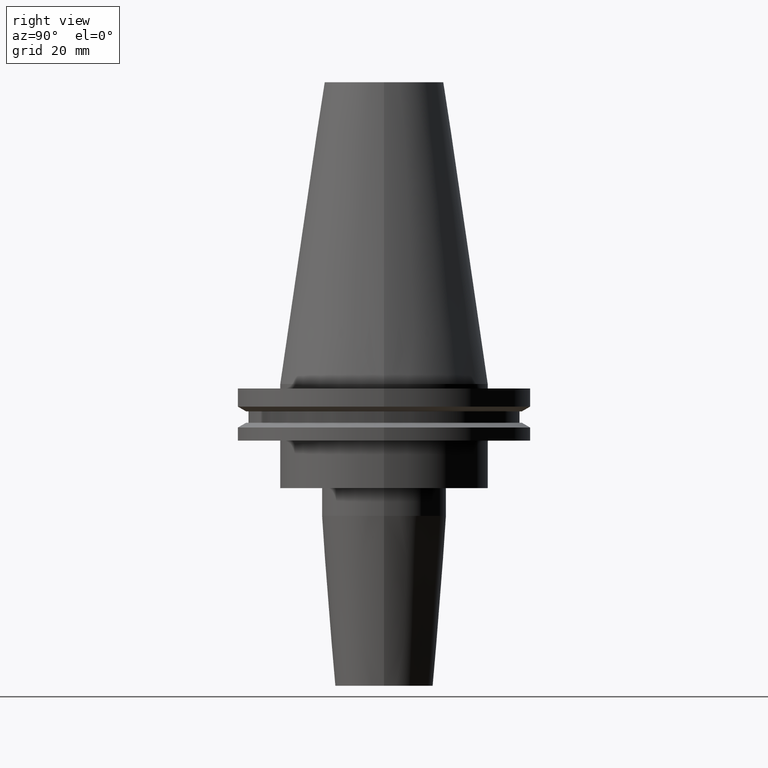
[diagram: clean part render]
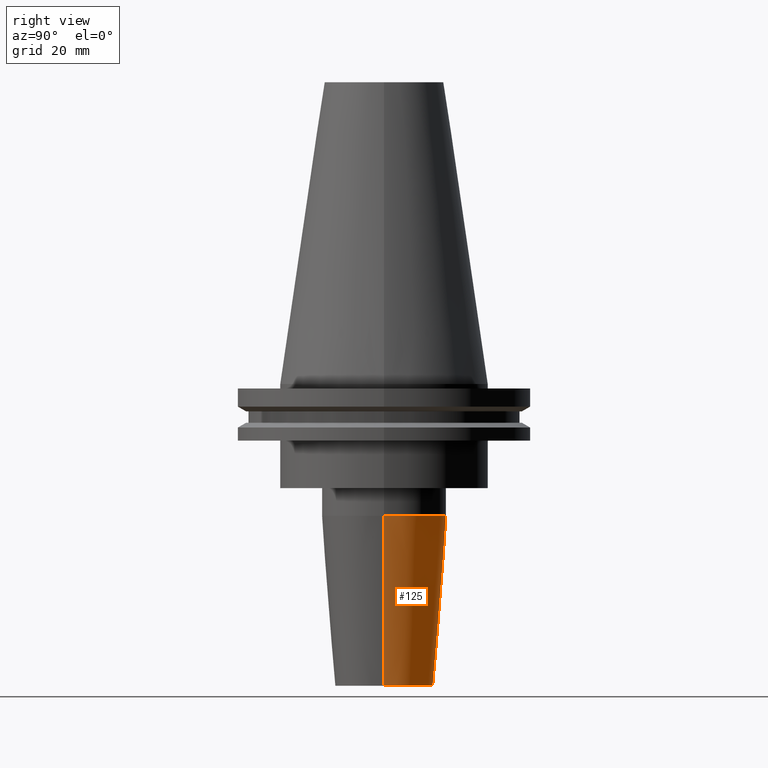
[diagram: same view with one face highlighted and labeled with its STEP entity id]
A machine part, right view. The second image highlights one B-rep face of the part: STEP entity #125.
In plain terms, the highlighted conical surface has half-angle 4.5 deg.
Its self-contained STEP definition (entity closure, byte-faithful):
#7 = CARTESIAN_POINT ( 'NONE',  ( -16.50000000000000000, 2.296212748401287183E-15, -101.5999999999999943 ) ) ;
#16 = CARTESIAN_POINT ( 'NONE',  ( -16.50000000000000000, 2.020667218593133100E-15, -101.5999999999999943 ) ) ;
#59 = VERTEX_POINT ( 'NONE', #220 ) ;
#63 = CARTESIAN_POINT ( 'NONE',  ( 16.50000000000000000, 0.000000000000000000, -101.5999999999999943 ) ) ;
#87 = ORIENTED_EDGE ( 'NONE', *, *, #317, .F. ) ;
#100 = DIRECTION ( 'NONE',  ( 1.000000000000000000, 0.000000000000000000, 0.000000000000000000 ) ) ;
#119 = EDGE_LOOP ( 'NONE', ( #694, #821, #87, #755 ) ) ;
#125 = ADVANCED_FACE ( 'NONE', ( #419 ), #687, .T. ) ;
#140 = AXIS2_PLACEMENT_3D ( 'NONE', #621, #302, #221 ) ;
#197 = VERTEX_POINT ( 'NONE', #7 ) ;
#217 = DIRECTION ( 'NONE',  ( -0.000000000000000000, -0.000000000000000000, 1.000000000000000000 ) ) ;
#220 = CARTESIAN_POINT ( 'NONE',  ( 20.99999999999999645, 0.000000000000000000, -44.42207868720840480 ) ) ;
#221 = DIRECTION ( 'NONE',  ( 1.000000000000000000, 0.000000000000000000, 0.000000000000000000 ) ) ;
#237 = CARTESIAN_POINT ( 'NONE',  ( 16.50000000000000000, 0.000000000000000000, -101.5999999999999943 ) ) ;
#302 = DIRECTION ( 'NONE',  ( -0.000000000000000000, -0.000000000000000000, 1.000000000000000000 ) ) ;
#317 = EDGE_CURVE ( 'NONE', #59, #380, #346, .T. ) ;
#346 = CIRCLE ( 'NONE', #417, 20.99999999999999645 ) ;
#350 = CARTESIAN_POINT ( 'NONE',  ( -20.99999999999999645, 2.571758278209441267E-15, -44.42207868720840480 ) ) ;
#380 = VERTEX_POINT ( 'NONE', #350 ) ;
#399 = LINE ( 'NONE', #63, #820 ) ;
#402 = CIRCLE ( 'NONE', #140, 16.50000000000000000 ) ;
#417 = AXIS2_PLACEMENT_3D ( 'NONE', #487, #217, #762 ) ;
#419 = FACE_OUTER_BOUND ( 'NONE', #119, .T. ) ;
#487 = CARTESIAN_POINT ( 'NONE',  ( 0.000000000000000000, 0.000000000000000000, -44.42207868720840480 ) ) ;
#491 = CARTESIAN_POINT ( 'NONE',  ( 0.000000000000000000, 0.000000000000000000, -101.5999999999999943 ) ) ;
#579 = EDGE_CURVE ( 'NONE', #197, #380, #799, .T. ) ;
#621 = CARTESIAN_POINT ( 'NONE',  ( 0.000000000000000000, 0.000000000000000000, -101.5999999999999943 ) ) ;
#630 = EDGE_CURVE ( 'NONE', #742, #59, #399, .T. ) ;
#687 = CONICAL_SURFACE ( 'NONE', #818, 16.50000000000000000, 0.07853981633973738941 ) ;
#694 = ORIENTED_EDGE ( 'NONE', *, *, #704, .T. ) ;
#704 = EDGE_CURVE ( 'NONE', #742, #197, #402, .T. ) ;
#742 = VERTEX_POINT ( 'NONE', #237 ) ;
#755 = ORIENTED_EDGE ( 'NONE', *, *, #630, .F. ) ;
#762 = DIRECTION ( 'NONE',  ( 1.000000000000000000, 0.000000000000000000, 0.000000000000000000 ) ) ;
#764 = DIRECTION ( 'NONE',  ( -0.000000000000000000, -0.000000000000000000, 1.000000000000000000 ) ) ;
#799 = LINE ( 'NONE', #16, #845 ) ;
#809 = DIRECTION ( 'NONE',  ( -0.07845909572783751895, 9.608468044709198293E-18, 0.9969173337331286300 ) ) ;
#818 = AXIS2_PLACEMENT_3D ( 'NONE', #491, #764, #100 ) ;
#820 = VECTOR ( 'NONE', #854, 999.9999999999998863 ) ;
#821 = ORIENTED_EDGE ( 'NONE', *, *, #579, .T. ) ;
#845 = VECTOR ( 'NONE', #809, 999.9999999999998863 ) ;
#854 = DIRECTION ( 'NONE',  ( 0.07845909572783751895, 0.000000000000000000, 0.9969173337331286300 ) ) ;